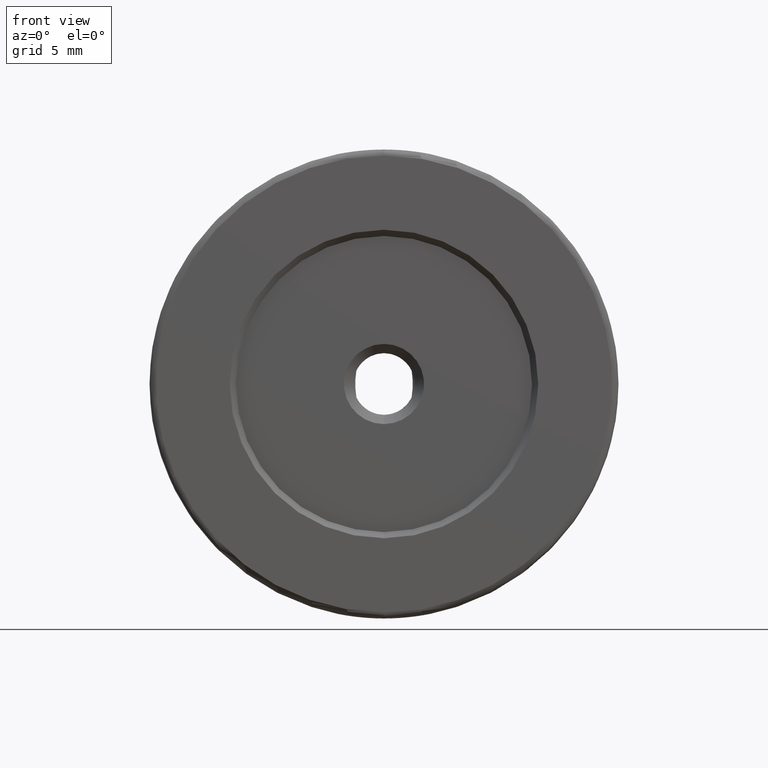
[diagram: clean part render]
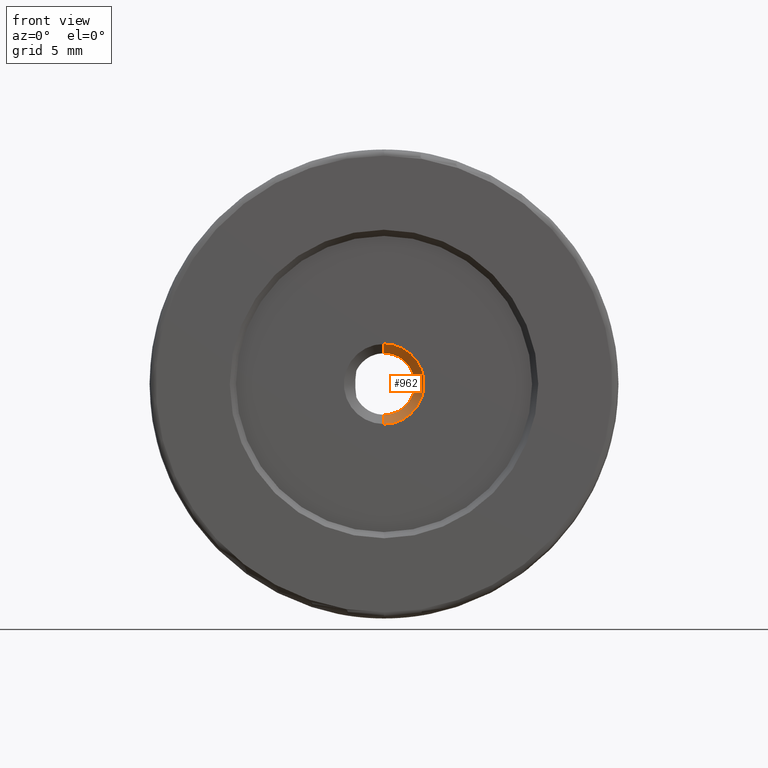
[diagram: same view with one face highlighted and labeled with its STEP entity id]
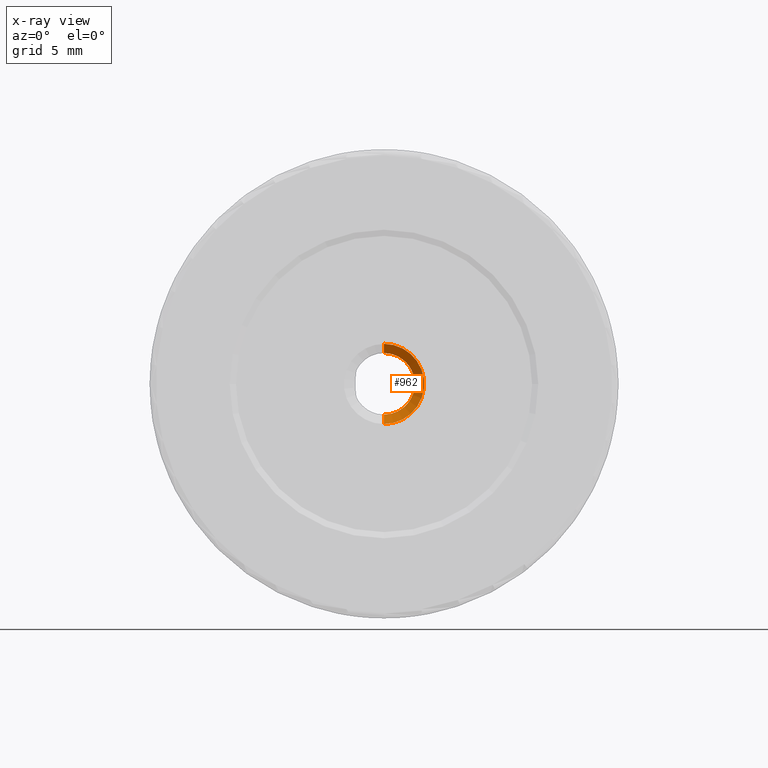
[diagram: x-ray of the same camera — body ghosted, the highlighted face saturated]
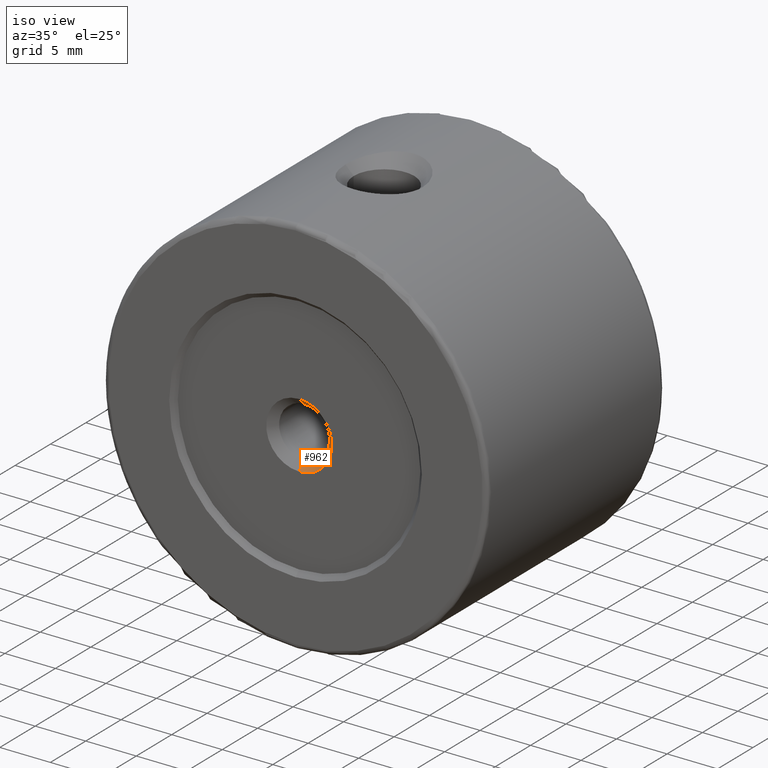
[diagram: same view with one face highlighted and labeled with its STEP entity id]
A machine part, front view. The second image highlights one B-rep face of the part: STEP entity #962.
The next image is the same camera in x-ray: the body ghosted, the highlighted face saturated — about 0% of this face is hidden behind the body in this view.
A second angle (iso view) of the same face is appended — the face is thin or edge-on in the first view.
In plain terms, the highlighted conical surface has half-angle 45 deg.
Its self-contained STEP definition (entity closure, byte-faithful):
#55 = AXIS2_PLACEMENT_3D ( 'NONE', #404, #881, #505 ) ;
#87 = CARTESIAN_POINT ( 'NONE',  ( 0.000000000000000000, -11.25000000000000533, -2.499999999999993339 ) ) ;
#98 = ORIENTED_EDGE ( 'NONE', *, *, #357, .F. ) ;
#102 = VERTEX_POINT ( 'NONE', #589 ) ;
#127 = DIRECTION ( 'NONE',  ( 0.000000000000000000, -1.000000000000000000, 0.000000000000000000 ) ) ;
#178 = CARTESIAN_POINT ( 'NONE',  ( 3.980102097228892808E-16, -12.00000000000000000, 3.249999999999996003 ) ) ;
#236 = VECTOR ( 'NONE', #383, 1000.000000000000114 ) ;
#242 = ORIENTED_EDGE ( 'NONE', *, *, #878, .F. ) ;
#251 = FACE_OUTER_BOUND ( 'NONE', #1202, .T. ) ;
#355 = VERTEX_POINT ( 'NONE', #178 ) ;
#356 = AXIS2_PLACEMENT_3D ( 'NONE', #442, #822, #758 ) ;
#357 = EDGE_CURVE ( 'NONE', #994, #355, #747, .T. ) ;
#372 = ORIENTED_EDGE ( 'NONE', *, *, #759, .T. ) ;
#383 = DIRECTION ( 'NONE',  ( 0.000000000000000000, -0.7071067811865442421, -0.7071067811865507924 ) ) ;
#391 = DIRECTION ( 'NONE',  ( 8.659560562354972301E-17, -0.7071067811865442421, 0.7071067811865507924 ) ) ;
#404 = CARTESIAN_POINT ( 'NONE',  ( 0.000000000000000000, -12.00000000000000000, 0.000000000000000000 ) ) ;
#442 = CARTESIAN_POINT ( 'NONE',  ( 0.000000000000000000, -11.25000000000000533, 0.000000000000000000 ) ) ;
#456 = CARTESIAN_POINT ( 'NONE',  ( 3.061616997868375253E-16, -11.25000000000000533, 2.499999999999993339 ) ) ;
#505 = DIRECTION ( 'NONE',  ( 0.000000000000000000, 0.000000000000000000, -1.000000000000000000 ) ) ;
#511 = VERTEX_POINT ( 'NONE', #797 ) ;
#589 = CARTESIAN_POINT ( 'NONE',  ( 0.000000000000000000, -11.25000000000000533, -2.499999999999993339 ) ) ;
#735 = ORIENTED_EDGE ( 'NONE', *, *, #1016, .F. ) ;
#747 = LINE ( 'NONE', #1029, #959 ) ;
#751 = LINE ( 'NONE', #87, #236 ) ;
#758 = DIRECTION ( 'NONE',  ( 0.000000000000000000, 0.000000000000000000, -1.000000000000000000 ) ) ;
#759 = EDGE_CURVE ( 'NONE', #102, #511, #751, .T. ) ;
#768 = CIRCLE ( 'NONE', #830, 2.499999999999993339 ) ;
#797 = CARTESIAN_POINT ( 'NONE',  ( 0.000000000000000000, -12.00000000000000000, -3.249999999999996003 ) ) ;
#807 = CONICAL_SURFACE ( 'NONE', #356, 2.499999999999993339, 0.7853981633974528309 ) ;
#822 = DIRECTION ( 'NONE',  ( 0.000000000000000000, -1.000000000000000000, 0.000000000000000000 ) ) ;
#830 = AXIS2_PLACEMENT_3D ( 'NONE', #1162, #127, #1068 ) ;
#878 = EDGE_CURVE ( 'NONE', #355, #511, #1069, .T. ) ;
#881 = DIRECTION ( 'NONE',  ( -0.000000000000000000, 1.000000000000000000, -0.000000000000000000 ) ) ;
#959 = VECTOR ( 'NONE', #391, 1000.000000000000114 ) ;
#962 = ADVANCED_FACE ( 'NONE', ( #251 ), #807, .F. ) ;
#994 = VERTEX_POINT ( 'NONE', #456 ) ;
#1016 = EDGE_CURVE ( 'NONE', #102, #994, #768, .T. ) ;
#1029 = CARTESIAN_POINT ( 'NONE',  ( 3.061616997868375253E-16, -11.25000000000000533, 2.499999999999993339 ) ) ;
#1068 = DIRECTION ( 'NONE',  ( 0.000000000000000000, 0.000000000000000000, -1.000000000000000000 ) ) ;
#1069 = CIRCLE ( 'NONE', #55, 3.249999999999996003 ) ;
#1162 = CARTESIAN_POINT ( 'NONE',  ( 0.000000000000000000, -11.25000000000000533, 0.000000000000000000 ) ) ;
#1202 = EDGE_LOOP ( 'NONE', ( #98, #735, #372, #242 ) ) ;